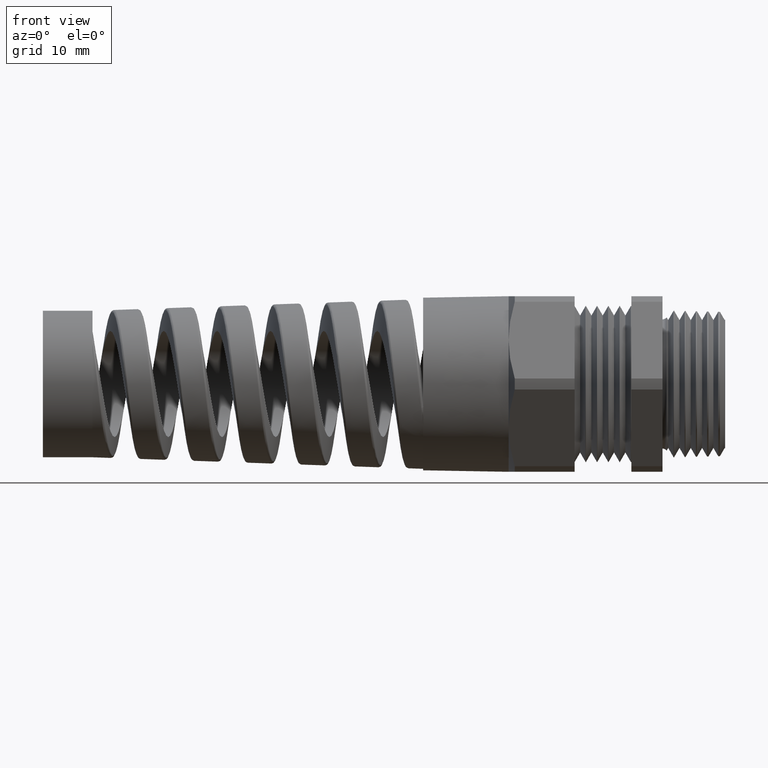
[diagram: clean part render]
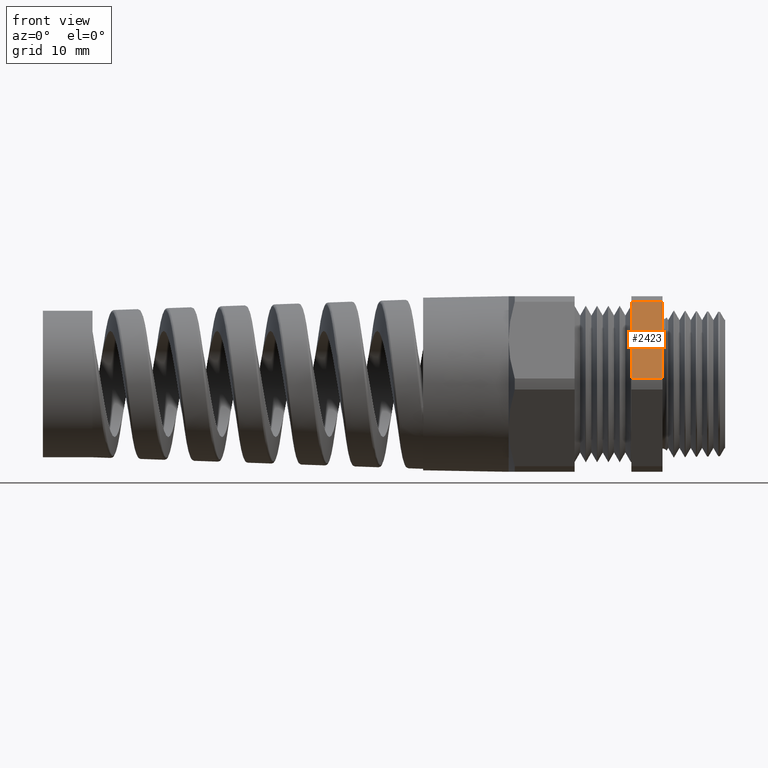
[diagram: same view with one face highlighted and labeled with its STEP entity id]
A machine part, front view. The second image highlights one B-rep face of the part: STEP entity #2423.
In plain terms, the highlighted planar face has unit normal (0, -0.866, 0.5).
Its self-contained STEP definition (entity closure, byte-faithful):
#1261 = EDGE_CURVE ( 'NONE', #1297, #1341, #5004, .T. ) ;
#1297 = VERTEX_POINT ( 'NONE', #5068 ) ;
#1316 = EDGE_CURVE ( 'NONE', #1297, #11167, #5059, .T. ) ;
#1341 = VERTEX_POINT ( 'NONE', #5152 ) ;
#1342 = EDGE_CURVE ( 'NONE', #1341, #9299, #5151, .T. ) ;
#2364 = ORIENTED_EDGE ( 'NONE', *, *, #9292, .F. ) ;
#2423 = ADVANCED_FACE ( 'NONE', ( #6602 ), #6601, .T. ) ;
#2443 = ORIENTED_EDGE ( 'NONE', *, *, #1316, .F. ) ;
#2460 = ORIENTED_EDGE ( 'NONE', *, *, #1261, .T. ) ;
#2467 = ORIENTED_EDGE ( 'NONE', *, *, #1342, .T. ) ;
#2469 = EDGE_LOOP ( 'NONE', ( #2460, #2467, #2364, #2443 ) ) ;
#5001 = DIRECTION ( 'NONE',  ( 0.0000000000000000000, -0.5000000000000002200, -0.8660254037844386000 ) ) ;
#5002 = VECTOR ( 'NONE', #5001, 39.37007874015747400 ) ;
#5003 = CARTESIAN_POINT ( 'NONE',  ( -0.1542288557213930500, -0.2799960506462307300, 0.3850326143620998500 ) ) ;
#5004 = LINE ( 'NONE', #5003, #5002 ) ;
#5059 = LINE ( 'NONE', #5105, #5104 ) ;
#5068 = CARTESIAN_POINT ( 'NONE',  ( -0.1542288557213930500, -0.2670182247938401900, 0.4075108681102214700 ) ) ;
#5103 = DIRECTION ( 'NONE',  ( 1.000000000000000000, 0.0000000000000000000, 0.0000000000000000000 ) ) ;
#5104 = VECTOR ( 'NONE', #5103, 39.37007874015748100 ) ;
#5105 = CARTESIAN_POINT ( 'NONE',  ( -2.154289792128107500, -0.2670182247938398000, 0.4075108681102215200 ) ) ;
#5148 = DIRECTION ( 'NONE',  ( 1.000000000000000000, 0.0000000000000000000, 0.0000000000000000000 ) ) ;
#5149 = VECTOR ( 'NONE', #5148, 39.37007874015748100 ) ;
#5150 = CARTESIAN_POINT ( 'NONE',  ( -2.154289792128107500, -0.4864238764986216800, 0.02748913188977850100 ) ) ;
#5151 = LINE ( 'NONE', #5150, #5149 ) ;
#5152 = CARTESIAN_POINT ( 'NONE',  ( -0.1542288557213930500, -0.4864238764986216800, 0.02748913188977850100 ) ) ;
#6601 = PLANE ( 'NONE',  #6665 ) ;
#6602 = FACE_OUTER_BOUND ( 'NONE', #2469, .T. ) ;
#6662 = DIRECTION ( 'NONE',  ( 0.0000000000000000000, -0.5000000000000001100, -0.8660254037844386000 ) ) ;
#6663 = DIRECTION ( 'NONE',  ( 0.0000000000000000000, -0.8660254037844386000, 0.5000000000000001100 ) ) ;
#6664 = CARTESIAN_POINT ( 'NONE',  ( -2.154289792128107500, -0.2670182247938399100, 0.4075108681102214700 ) ) ;
#6665 = AXIS2_PLACEMENT_3D ( 'NONE', #6664, #6663, #6662 ) ;
#7004 = DIRECTION ( 'NONE',  ( 0.0000000000000000000, -0.5000000000000001100, -0.8660254037844386000 ) ) ;
#7005 = VECTOR ( 'NONE', #7004, 39.37007874015748900 ) ;
#7006 = CARTESIAN_POINT ( 'NONE',  ( 0.0000000000000000000, -0.2670182247938399100, 0.4075108681102214700 ) ) ;
#7007 = LINE ( 'NONE', #7006, #7005 ) ;
#7056 = CARTESIAN_POINT ( 'NONE',  ( 0.0000000000000000000, -0.4864238764986216800, 0.02748913188977850100 ) ) ;
#9292 = EDGE_CURVE ( 'NONE', #11167, #9299, #7007, .T. ) ;
#9299 = VERTEX_POINT ( 'NONE', #7056 ) ;
#10560 = CARTESIAN_POINT ( 'NONE',  ( 0.0000000000000000000, -0.2670182247938398000, 0.4075108681102215200 ) ) ;
#11167 = VERTEX_POINT ( 'NONE', #10560 ) ;